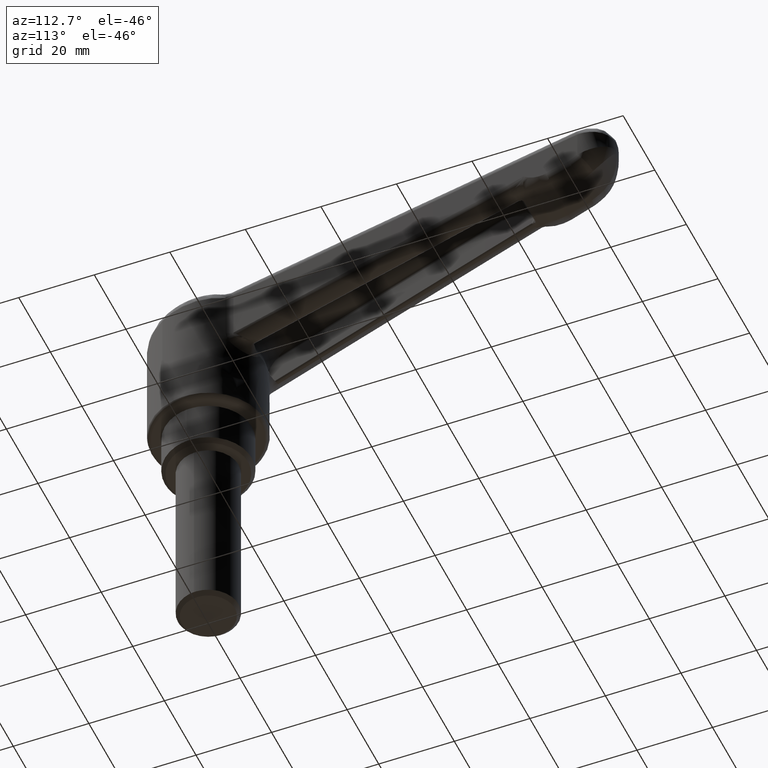
[diagram: clean part render]
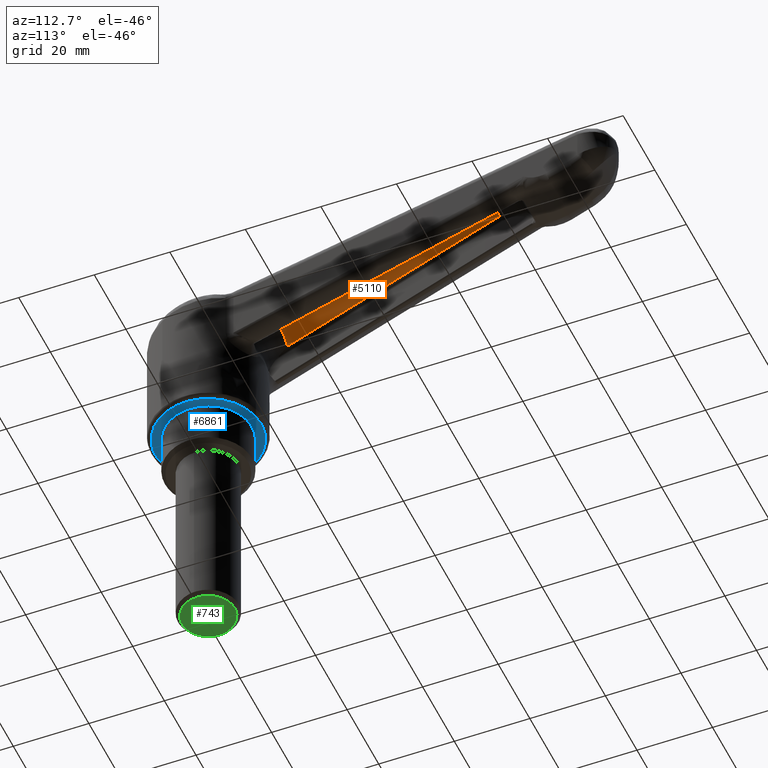
[diagram: same view with three faces highlighted in distinct colors, each labeled with its STEP entity id]
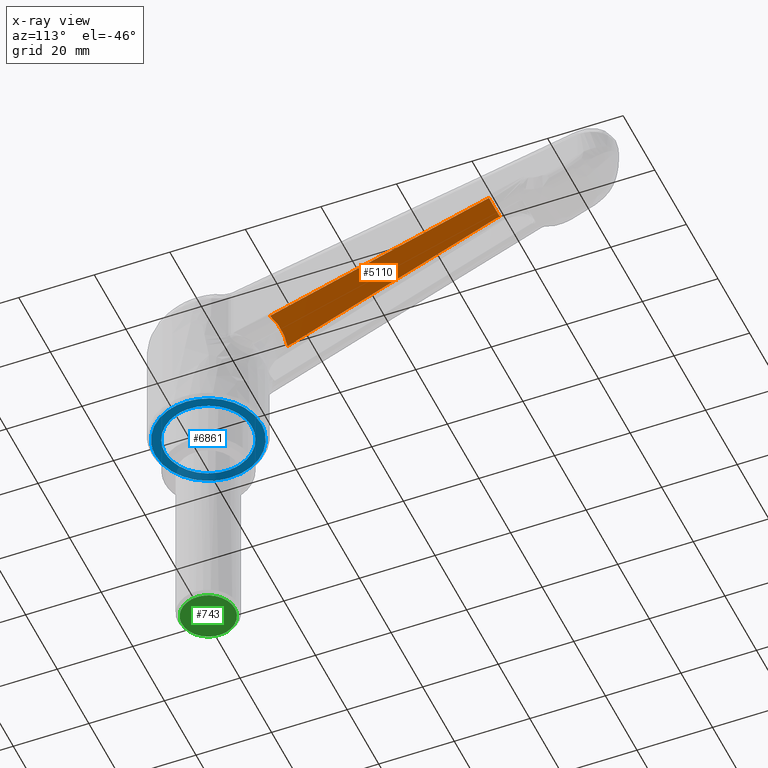
[diagram: x-ray of the same camera — body ghosted, the three highlighted faces saturated]
A machine part, auxiliary view with three faces highlighted in distinct colors.
The next image is the same camera in x-ray (body ghosted, the three faces saturated) — at least one of them is partly hidden behind the body in this view.
Their STEP definitions:

[orange] entity #5110 — the highlighted face is a freeform B-spline surface patch.
#2735=CARTESIAN_POINT('',(75.685990866509400,3.356642118530815,63.512301389045803));
#2736=VERTEX_POINT('',#2735);
#2802=CARTESIAN_POINT('',(18.620410927119948,5.564890292236240,42.742131453666552));
#2803=VERTEX_POINT('',#2802);
#2804=CARTESIAN_POINT('',(18.620410927119948,5.564890292236240,42.742131453666552));
#2805=CARTESIAN_POINT('',(75.685990866509400,3.356642118530815,63.512301389045803));
#2806=QUASI_UNIFORM_CURVE('',1,(#2804,#2805),.UNSPECIFIED.,.F.,.U.);
#2807=EDGE_CURVE('',#2803,#2736,#2806,.T.);
#2876=CARTESIAN_POINT('',(75.685990866509400,-3.356642118530595,63.512301389045803));
#2877=VERTEX_POINT('',#2876);
#2998=CARTESIAN_POINT('',(18.620410927119998,-5.564890292236000,42.742131453666602));
#2999=VERTEX_POINT('',#2998);
#3026=CARTESIAN_POINT('',(75.685990866509400,-3.356642118530595,63.512301389045803));
#3027=CARTESIAN_POINT('',(18.620410927119998,-5.564890292236000,42.742131453666602));
#3028=QUASI_UNIFORM_CURVE('',1,(#3026,#3027),.UNSPECIFIED.,.F.,.U.);
#3029=EDGE_CURVE('',#2877,#2999,#3028,.T.);
#3361=CARTESIAN_POINT('',(18.620410927120009,-5.564890292236000,42.742131453666602));
#3362=CARTESIAN_POINT('',(20.001694028884557,1.222980E-013,43.244877325749023));
#3363=CARTESIAN_POINT('',(18.620410927119948,5.564890292236233,42.742131453666580));
#3371=(BOUNDED_CURVE()B_SPLINE_CURVE(2,(#3361,#3362,#3363),.UNSPECIFIED.,.F.,.U.)CURVE()GEOMETRIC_REPRESENTATION_ITEM()QUASI_UNIFORM_CURVE()RATIONAL_B_SPLINE_CURVE((1.0,0.966839549618724,1.0))REPRESENTATION_ITEM(''));
#3372=EDGE_CURVE('',#2999,#2803,#3371,.T.);
#3936=CARTESIAN_POINT('',(75.685990866509400,3.356642118530815,63.512301389045803));
#3937=CARTESIAN_POINT('',(75.685990866509400,-3.356642118530595,63.512301389045803));
#3938=QUASI_UNIFORM_CURVE('',1,(#3936,#3937),.UNSPECIFIED.,.F.,.U.);
#3939=EDGE_CURVE('',#2736,#2877,#3938,.T.);
#5099=CARTESIAN_POINT('',(15.769984987939100,6.120822915337371,41.704661384881149));
#5100=CARTESIAN_POINT('',(15.769984987939100,-6.120823114353118,41.704661384881149));
#5101=CARTESIAN_POINT('',(78.536413744453967,6.120822915337371,64.549770343632517));
#5102=CARTESIAN_POINT('',(78.536413744453967,-6.120823114353118,64.549770343632517));
#5103=B_SPLINE_SURFACE_WITH_KNOTS('',1,1,((#5099,#5101),(#5100,#5102)),.UNSPECIFIED.,.F.,.F.,.U.,(2,2),(2,2),(0.0,12.241646029690489),(0.0,66.794637375944177),.UNSPECIFIED.);
#5104=ORIENTED_EDGE('',*,*,#3372,.T.);
#5105=ORIENTED_EDGE('',*,*,#2807,.T.);
#5106=ORIENTED_EDGE('',*,*,#3939,.T.);
#5107=ORIENTED_EDGE('',*,*,#3029,.T.);
#5108=EDGE_LOOP('',(#5104,#5105,#5106,#5107));
#5109=FACE_OUTER_BOUND('',#5108,.T.);
#5110=ADVANCED_FACE('',(#5109),#5103,.F.);

[blue] entity #6861 — the highlighted face is a freeform B-spline surface patch.
#1637=CARTESIAN_POINT('',(-0.902279601011869,-11.464549337919820,12.0));
#1638=VERTEX_POINT('',#1637);
#1644=CARTESIAN_POINT('',(-11.500000000000000,0.0,12.0));
#1645=VERTEX_POINT('',#1644);
#1646=CARTESIAN_POINT('',(-11.500000000000000,0.0,12.0));
#1647=CARTESIAN_POINT('',(-11.499999999999998,-10.630490653805873,11.999999999999998));
#1648=CARTESIAN_POINT('',(-0.902279601011869,-11.464549337919818,11.999999999999998));
#1656=(BOUNDED_CURVE()B_SPLINE_CURVE(2,(#1646,#1647,#1648),.UNSPECIFIED.,.F.,.U.)B_SPLINE_CURVE_WITH_KNOTS((3,3),(0.0,0.236331300628531),.UNSPECIFIED.)CURVE()GEOMETRIC_REPRESENTATION_ITEM()RATIONAL_B_SPLINE_CURVE((1.0,0.723120658610160,0.969723356162975))REPRESENTATION_ITEM(''));
#1657=EDGE_CURVE('',#1645,#1638,#1656,.T.);
#1659=CARTESIAN_POINT('',(0.902279601011871,11.464549337919820,12.0));
#1660=VERTEX_POINT('',#1659);
#1661=CARTESIAN_POINT('',(0.902279601011871,11.464549337919818,11.999999999999998));
#1662=CARTESIAN_POINT('',(0.451836230730509,11.500000000000000,12.000000000000007));
#1663=CARTESIAN_POINT('',(0.0,11.500000000000000,12.0));
#1664=CARTESIAN_POINT('',(-11.500000000000000,11.500000000000000,12.0));
#1665=CARTESIAN_POINT('',(-11.500000000000000,0.0,12.0));
#1673=(BOUNDED_CURVE()B_SPLINE_CURVE(2,(#1661,#1662,#1663,#1664,#1665),.UNSPECIFIED.,.F.,.U.)B_SPLINE_CURVE_WITH_KNOTS((3,2,3),(0.736331300628531,0.750000000000000,1.0),.UNSPECIFIED.)CURVE()GEOMETRIC_REPRESENTATION_ITEM()RATIONAL_B_SPLINE_CURVE((0.969723356162975,0.983986122576388,1.0,0.707106781186548,1.0))REPRESENTATION_ITEM(''));
#1674=EDGE_CURVE('',#1660,#1645,#1673,.T.);
#1750=CARTESIAN_POINT('',(11.500000000000000,0.0,12.0));
#1751=VERTEX_POINT('',#1750);
#1752=CARTESIAN_POINT('',(11.500000000000000,0.0,12.0));
#1753=CARTESIAN_POINT('',(11.499999999999998,10.630490653805932,12.0));
#1754=CARTESIAN_POINT('',(0.902279601011871,11.464549337919827,11.999999999999996));
#1762=(BOUNDED_CURVE()B_SPLINE_CURVE(2,(#1752,#1753,#1754),.UNSPECIFIED.,.F.,.U.)B_SPLINE_CURVE_WITH_KNOTS((3,3),(0.500000000000000,0.736331300628532),.UNSPECIFIED.)CURVE()GEOMETRIC_REPRESENTATION_ITEM()RATIONAL_B_SPLINE_CURVE((1.0,0.723120658610159,0.969723356162977))REPRESENTATION_ITEM(''));
#1763=EDGE_CURVE('',#1751,#1660,#1762,.T.);
#1765=CARTESIAN_POINT('',(-0.902279601011869,-11.464549337919827,11.999999999999996));
#1766=CARTESIAN_POINT('',(-0.451836230730507,-11.499999999999998,12.000000000000005));
#1767=CARTESIAN_POINT('',(0.0,-11.500000000000000,12.0));
#1768=CARTESIAN_POINT('',(11.500000000000000,-11.500000000000000,12.0));
#1769=CARTESIAN_POINT('',(11.500000000000000,0.0,12.0));
#1777=(BOUNDED_CURVE()B_SPLINE_CURVE(2,(#1765,#1766,#1767,#1768,#1769),.UNSPECIFIED.,.F.,.U.)B_SPLINE_CURVE_WITH_KNOTS((3,2,3),(0.236331300628531,0.250000000000000,0.500000000000000),.UNSPECIFIED.)CURVE()GEOMETRIC_REPRESENTATION_ITEM()RATIONAL_B_SPLINE_CURVE((0.969723356162975,0.983986122576388,1.0,0.707106781186548,1.0))REPRESENTATION_ITEM(''));
#1778=EDGE_CURVE('',#1638,#1751,#1777,.T.);
#2362=CARTESIAN_POINT('',(-13.995578663294911,-0.351821337065065,12.0));
#2363=VERTEX_POINT('',#2362);
#2377=CARTESIAN_POINT('',(14.0,0.0,12.0));
#2378=VERTEX_POINT('',#2377);
#2379=CARTESIAN_POINT('',(14.0,0.0,12.0));
#2380=CARTESIAN_POINT('',(13.999999999999998,-13.999999999999998,12.0));
#2381=CARTESIAN_POINT('',(0.0,-14.0,12.0));
#2382=CARTESIAN_POINT('',(-13.652490265508577,-14.0,11.999999999999998));
#2383=CARTESIAN_POINT('',(-13.995578663294904,-0.351821337065065,12.000000000000005));
#2391=(BOUNDED_CURVE()B_SPLINE_CURVE(2,(#2379,#2380,#2381,#2382,#2383),.UNSPECIFIED.,.F.,.U.)B_SPLINE_CURVE_WITH_KNOTS((3,2,3),(0.500000000000000,0.750000000000000,0.995579891756732),.UNSPECIFIED.)CURVE()GEOMETRIC_REPRESENTATION_ITEM()RATIONAL_B_SPLINE_CURVE((1.0,0.707106781186547,1.0,0.712285260110046,0.989826157652022))REPRESENTATION_ITEM(''));
#2392=EDGE_CURVE('',#2378,#2363,#2391,.T.);
#2394=CARTESIAN_POINT('',(-0.351821337005621,13.995578662475710,12.0));
#2395=VERTEX_POINT('',#2394);
#2396=CARTESIAN_POINT('',(-0.351821337005621,13.995578662475708,11.999999999999996));
#2397=CARTESIAN_POINT('',(-0.175938450211669,13.999999999999998,12.000000000000004));
#2398=CARTESIAN_POINT('',(0.0,14.0,12.0));
#2399=CARTESIAN_POINT('',(13.999999999999998,13.999999999999998,12.0));
#2400=CARTESIAN_POINT('',(14.0,0.0,12.0));
#2408=(BOUNDED_CURVE()B_SPLINE_CURVE(2,(#2396,#2397,#2398,#2399,#2400),.UNSPECIFIED.,.F.,.U.)B_SPLINE_CURVE_WITH_KNOTS((3,2,3),(0.245579891757702,0.250000000000000,0.500000000000000),.UNSPECIFIED.)CURVE()GEOMETRIC_REPRESENTATION_ITEM()RATIONAL_B_SPLINE_CURVE((0.989826157654214,0.994821521077638,1.0,0.707106781186547,1.0))REPRESENTATION_ITEM(''));
#2409=EDGE_CURVE('',#2395,#2378,#2408,.T.);
#2446=CARTESIAN_POINT('',(-14.0,0.0,12.0));
#2447=VERTEX_POINT('',#2446);
#2448=CARTESIAN_POINT('',(-14.0,0.0,12.0));
#2449=CARTESIAN_POINT('',(-13.999999999999998,13.652490265584282,12.000000000000002));
#2450=CARTESIAN_POINT('',(-0.351821337005621,13.995578662475715,12.000000000000005));
#2458=(BOUNDED_CURVE()B_SPLINE_CURVE(2,(#2448,#2449,#2450),.UNSPECIFIED.,.F.,.U.)B_SPLINE_CURVE_WITH_KNOTS((3,3),(0.0,0.245579891757702),.UNSPECIFIED.)CURVE()GEOMETRIC_REPRESENTATION_ITEM()RATIONAL_B_SPLINE_CURVE((1.0,0.712285260108909,0.989826157654215))REPRESENTATION_ITEM(''));
#2459=EDGE_CURVE('',#2447,#2395,#2458,.T.);
#2461=CARTESIAN_POINT('',(-13.995578663294905,-0.351821337065065,12.000000000000002));
#2462=CARTESIAN_POINT('',(-14.000000000000004,-0.175938450250514,12.000000000000004));
#2463=CARTESIAN_POINT('',(-14.0,0.0,12.0));
#2471=(BOUNDED_CURVE()B_SPLINE_CURVE(2,(#2461,#2462,#2463),.UNSPECIFIED.,.F.,.U.)B_SPLINE_CURVE_WITH_KNOTS((3,3),(0.995579891756731,1.0),.UNSPECIFIED.)CURVE()GEOMETRIC_REPRESENTATION_ITEM()RATIONAL_B_SPLINE_CURVE((0.989826157652020,0.994821521076501,1.0))REPRESENTATION_ITEM(''));
#2472=EDGE_CURVE('',#2363,#2447,#2471,.T.);
#6844=CARTESIAN_POINT('',(-15.398599945730570,15.393902834185500,12.0));
#6845=CARTESIAN_POINT('',(15.398600696749090,15.393902834185500,12.0));
#6846=CARTESIAN_POINT('',(-15.398599945730570,-15.397219747080010,12.0));
#6847=CARTESIAN_POINT('',(15.398600696749090,-15.397219747080010,12.0));
#6848=B_SPLINE_SURFACE_WITH_KNOTS('',1,1,((#6844,#6846),(#6845,#6847)),.UNSPECIFIED.,.F.,.F.,.U.,(2,2),(2,2),(0.0,30.797200642479659),(0.0,30.791122581265508),.UNSPECIFIED.);
#6849=ORIENTED_EDGE('',*,*,#2459,.T.);
#6850=ORIENTED_EDGE('',*,*,#2409,.T.);
#6851=ORIENTED_EDGE('',*,*,#2392,.T.);
#6852=ORIENTED_EDGE('',*,*,#2472,.T.);
#6853=EDGE_LOOP('',(#6849,#6850,#6851,#6852));
#6854=FACE_OUTER_BOUND('',#6853,.T.);
#6855=ORIENTED_EDGE('',*,*,#1763,.T.);
#6856=ORIENTED_EDGE('',*,*,#1674,.T.);
#6857=ORIENTED_EDGE('',*,*,#1657,.T.);
#6858=ORIENTED_EDGE('',*,*,#1778,.T.);
#6859=EDGE_LOOP('',(#6855,#6856,#6857,#6858));
#6860=FACE_BOUND('',#6859,.T.);
#6861=ADVANCED_FACE('',(#6854,#6860),#6848,.T.);

[green] entity #743 — the highlighted face is a freeform B-spline surface patch.
#79=CARTESIAN_POINT('',(-1.281865403538475,6.881629246664062,-49.999999999904922));
#80=VERTEX_POINT('',#79);
#86=CARTESIAN_POINT('',(-7.0,0.0,-50.0));
#87=VERTEX_POINT('',#86);
#88=CARTESIAN_POINT('',(-7.0,0.0,-50.0));
#89=CARTESIAN_POINT('',(-6.999999999999999,5.816492103333519,-49.999999999999986));
#90=CARTESIAN_POINT('',(-1.281865403538475,6.881629246664062,-49.999999999904922));
#98=(BOUNDED_CURVE()B_SPLINE_CURVE(2,(#88,#89,#90),.UNSPECIFIED.,.F.,.U.)B_SPLINE_CURVE_WITH_KNOTS((3,3),(0.500000000000000,0.718554736249370),.UNSPECIFIED.)CURVE()GEOMETRIC_REPRESENTATION_ITEM()RATIONAL_B_SPLINE_CURVE((1.0,0.743947199251987,0.935586817171130))REPRESENTATION_ITEM(''));
#99=EDGE_CURVE('',#87,#80,#98,.T.);
#101=CARTESIAN_POINT('',(0.061085749467842,-6.999733461573985,-49.999999999866667));
#102=VERTEX_POINT('',#101);
#103=CARTESIAN_POINT('',(0.061085749467842,-6.999733461573985,-49.999999999866681));
#104=CARTESIAN_POINT('',(0.030543456723028,-6.999999999999999,-50.0));
#105=CARTESIAN_POINT('',(0.0,-7.0,-50.0));
#106=CARTESIAN_POINT('',(-6.999999999999999,-6.999999999999999,-49.999999999999993));
#107=CARTESIAN_POINT('',(-7.0,0.0,-50.0));
#115=(BOUNDED_CURVE()B_SPLINE_CURVE(2,(#103,#104,#105,#106,#107),.UNSPECIFIED.,.F.,.U.)B_SPLINE_CURVE_WITH_KNOTS((3,2,3),(0.248460105615789,0.250000000000000,0.500000000000000),.UNSPECIFIED.)CURVE()GEOMETRIC_REPRESENTATION_ITEM()RATIONAL_B_SPLINE_CURVE((0.996414027986487,0.998195901508702,1.0,0.707106781186547,1.0))REPRESENTATION_ITEM(''));
#116=EDGE_CURVE('',#102,#87,#115,.T.);
#226=CARTESIAN_POINT('',(7.0,0.0,-50.0));
#227=VERTEX_POINT('',#226);
#228=CARTESIAN_POINT('',(7.0,0.0,-50.0));
#229=CARTESIAN_POINT('',(6.999999999999999,-6.939178472225575,-50.0));
#230=CARTESIAN_POINT('',(0.061085749467842,-6.999733461573985,-49.999999999866681));
#238=(BOUNDED_CURVE()B_SPLINE_CURVE(2,(#228,#229,#230),.UNSPECIFIED.,.F.,.U.)B_SPLINE_CURVE_WITH_KNOTS((3,3),(0.0,0.248460105615789),.UNSPECIFIED.)CURVE()GEOMETRIC_REPRESENTATION_ITEM()RATIONAL_B_SPLINE_CURVE((1.0,0.708910879677845,0.996414027986487))REPRESENTATION_ITEM(''));
#239=EDGE_CURVE('',#227,#102,#238,.T.);
#241=CARTESIAN_POINT('',(-1.281865403538476,6.881629246664062,-49.999999999904929));
#242=CARTESIAN_POINT('',(-0.646398032306419,7.0,-50.0));
#243=CARTESIAN_POINT('',(0.0,7.0,-50.0));
#244=CARTESIAN_POINT('',(6.999999999999999,6.999999999999999,-49.999999999999993));
#245=CARTESIAN_POINT('',(7.0,0.0,-50.0));
#253=(BOUNDED_CURVE()B_SPLINE_CURVE(2,(#241,#242,#243,#244,#245),.UNSPECIFIED.,.F.,.U.)B_SPLINE_CURVE_WITH_KNOTS((3,2,3),(0.718554736249369,0.750000000000000,1.0),.UNSPECIFIED.)CURVE()GEOMETRIC_REPRESENTATION_ITEM()RATIONAL_B_SPLINE_CURVE((0.935586817171129,0.963159581934559,1.0,0.707106781186547,1.0))REPRESENTATION_ITEM(''));
#254=EDGE_CURVE('',#80,#227,#253,.T.);
#732=CARTESIAN_POINT('',(-7.699299972865284,-7.699007070790327,-50.0));
#733=CARTESIAN_POINT('',(7.699300348374545,-7.699007070790327,-50.0));
#734=CARTESIAN_POINT('',(-7.699299972865284,7.699011576901472,-50.0));
#735=CARTESIAN_POINT('',(7.699300348374545,7.699011576901472,-50.0));
#736=B_SPLINE_SURFACE_WITH_KNOTS('',1,1,((#732,#734),(#733,#735)),.UNSPECIFIED.,.F.,.F.,.U.,(2,2),(2,2),(0.0,15.398600321239829),(0.0,15.398018647691799),.UNSPECIFIED.);
#737=ORIENTED_EDGE('',*,*,#239,.T.);
#738=ORIENTED_EDGE('',*,*,#116,.T.);
#739=ORIENTED_EDGE('',*,*,#99,.T.);
#740=ORIENTED_EDGE('',*,*,#254,.T.);
#741=EDGE_LOOP('',(#737,#738,#739,#740));
#742=FACE_OUTER_BOUND('',#741,.T.);
#743=ADVANCED_FACE('',(#742),#736,.F.);